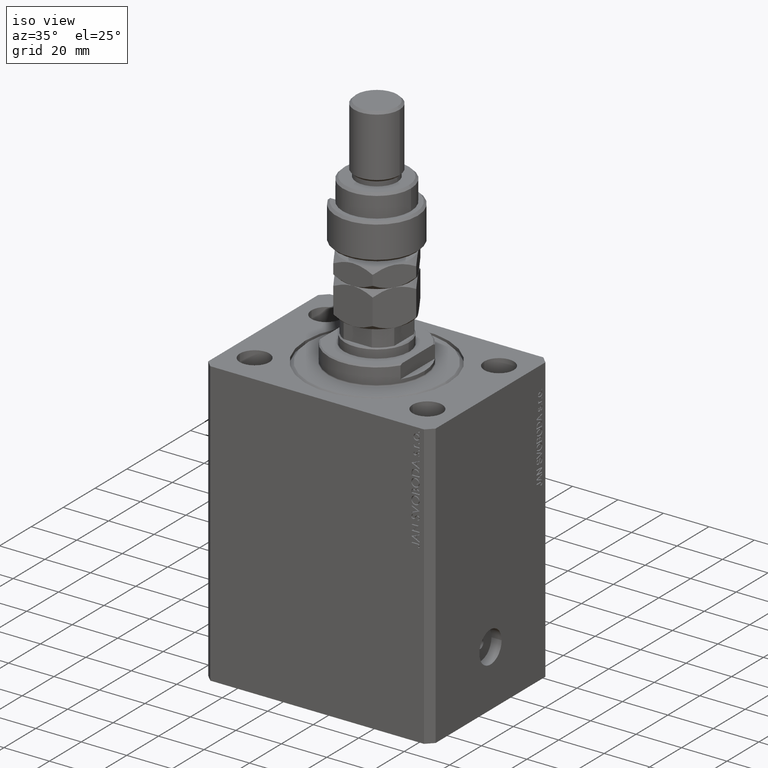
[diagram: clean part render]
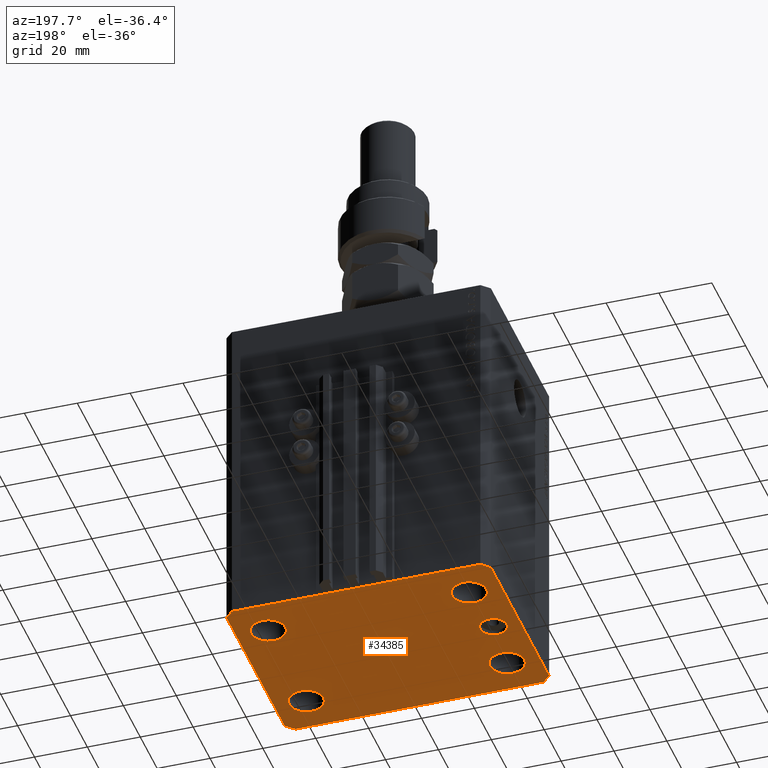
[diagram: tour spotlight — one face highlighted and labeled with its STEP entity id]
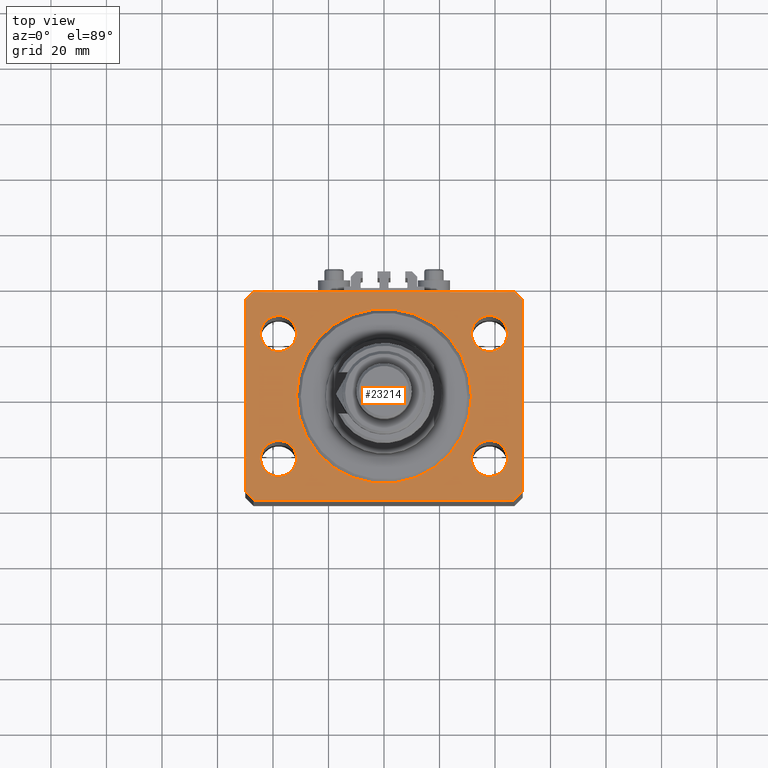
[diagram: tour spotlight — one face highlighted and labeled with its STEP entity id]
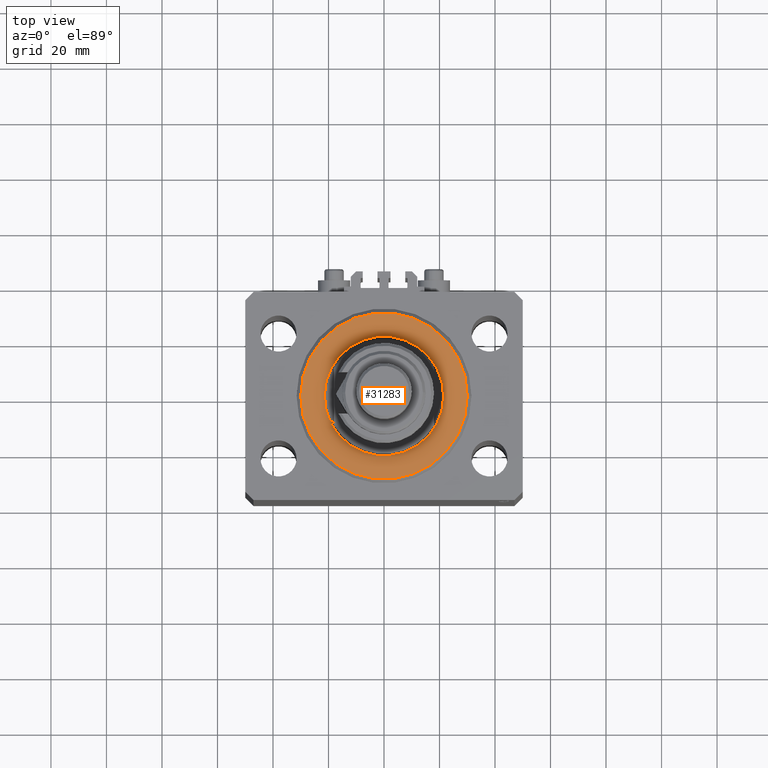
[diagram: tour spotlight — one face highlighted and labeled with its STEP entity id]
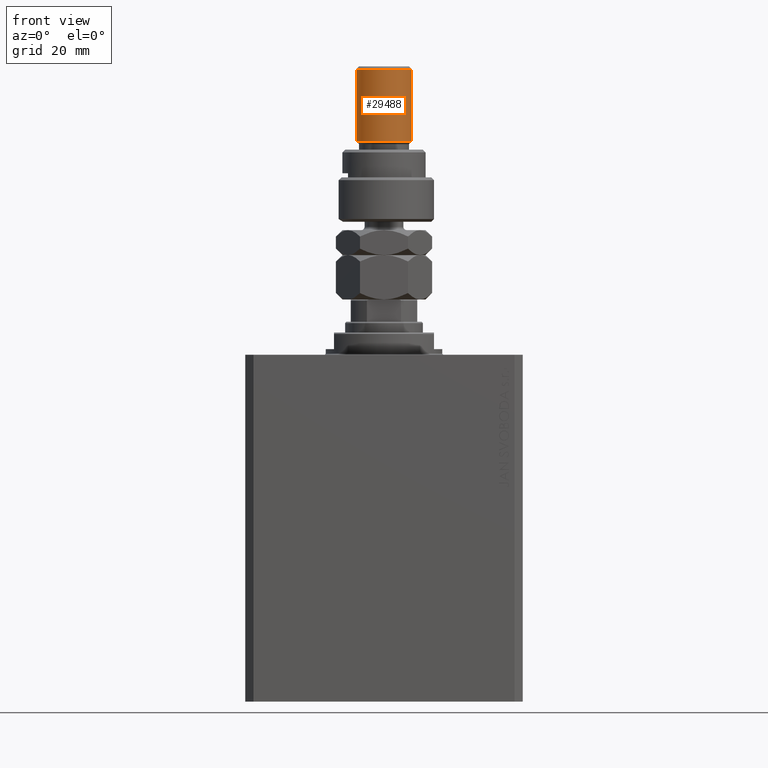
[diagram: tour spotlight — one face highlighted and labeled with its STEP entity id]
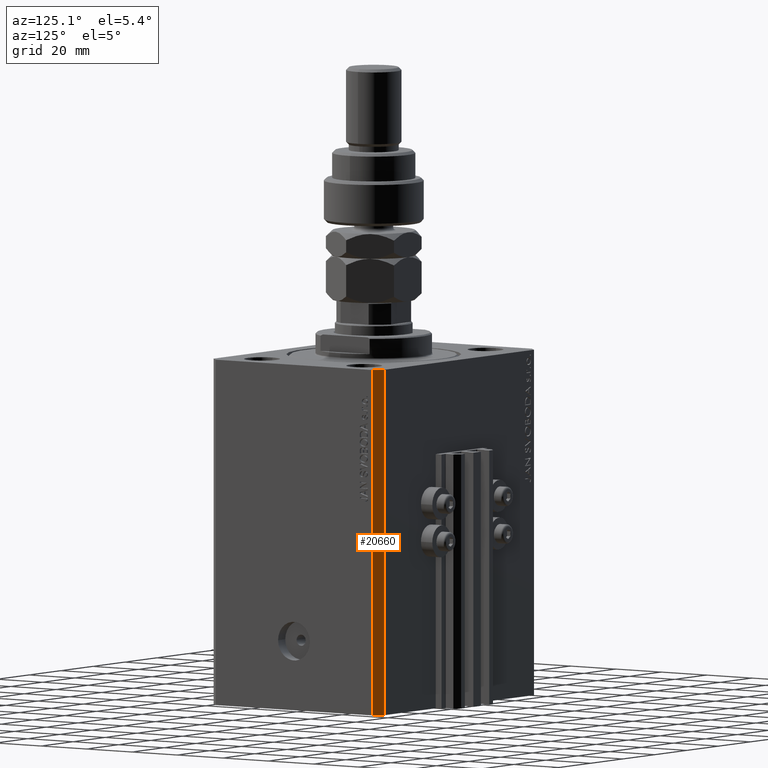
[diagram: tour spotlight — one face highlighted and labeled with its STEP entity id]
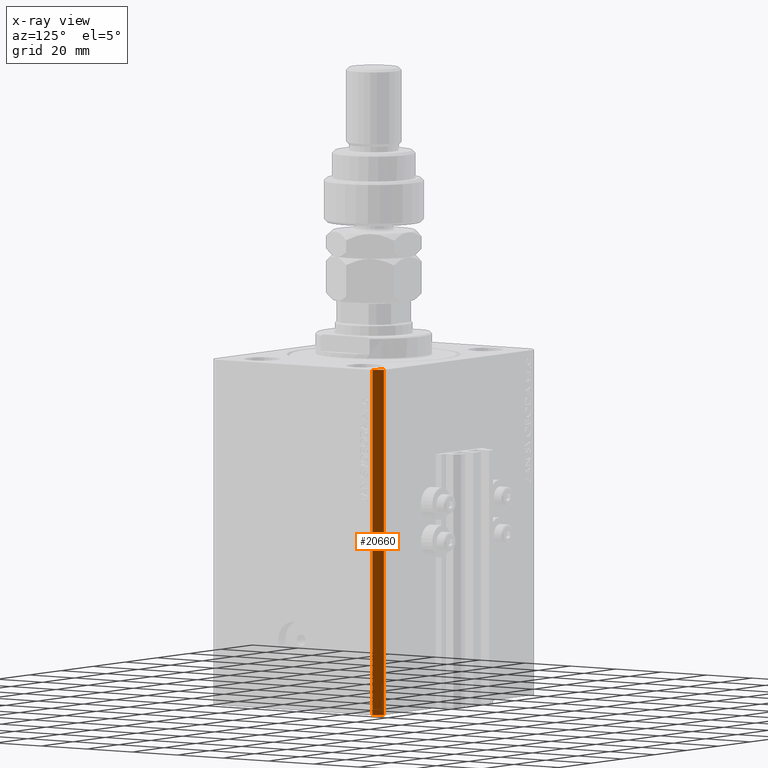
[diagram: x-ray of the same camera — body ghosted, this tour face saturated]
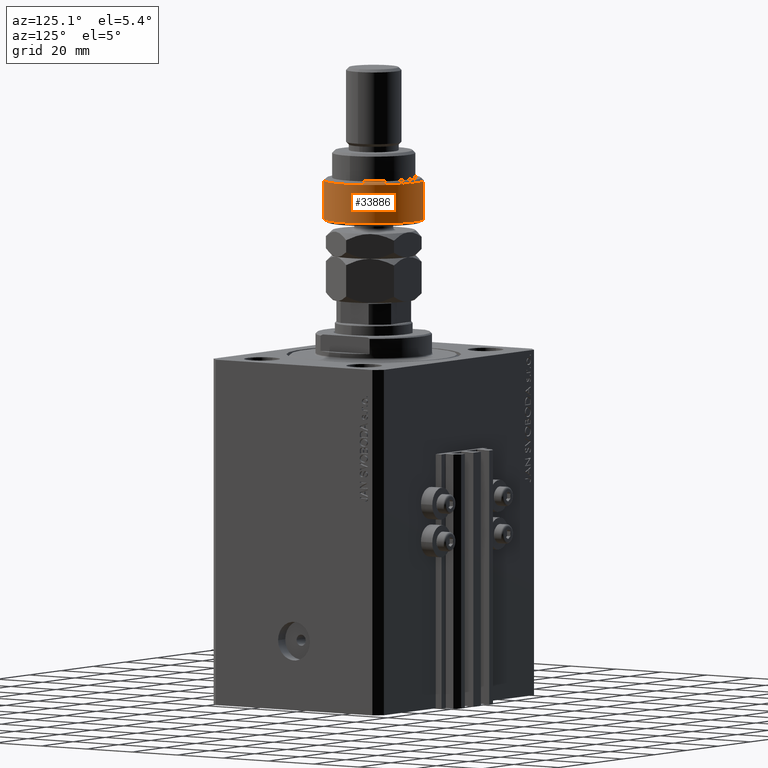
[diagram: tour spotlight — one face highlighted and labeled with its STEP entity id]
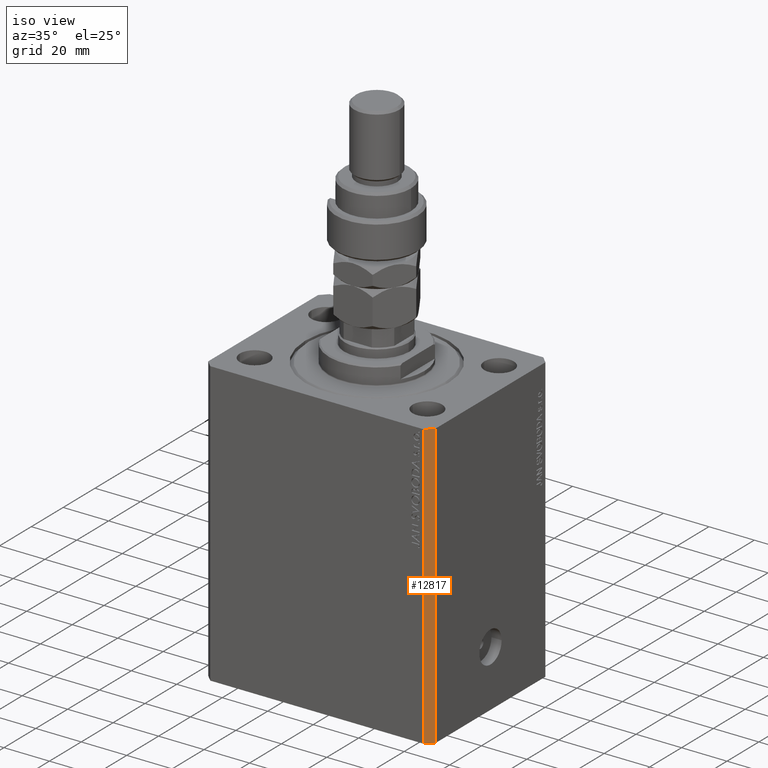
[diagram: tour spotlight — one face highlighted and labeled with its STEP entity id]
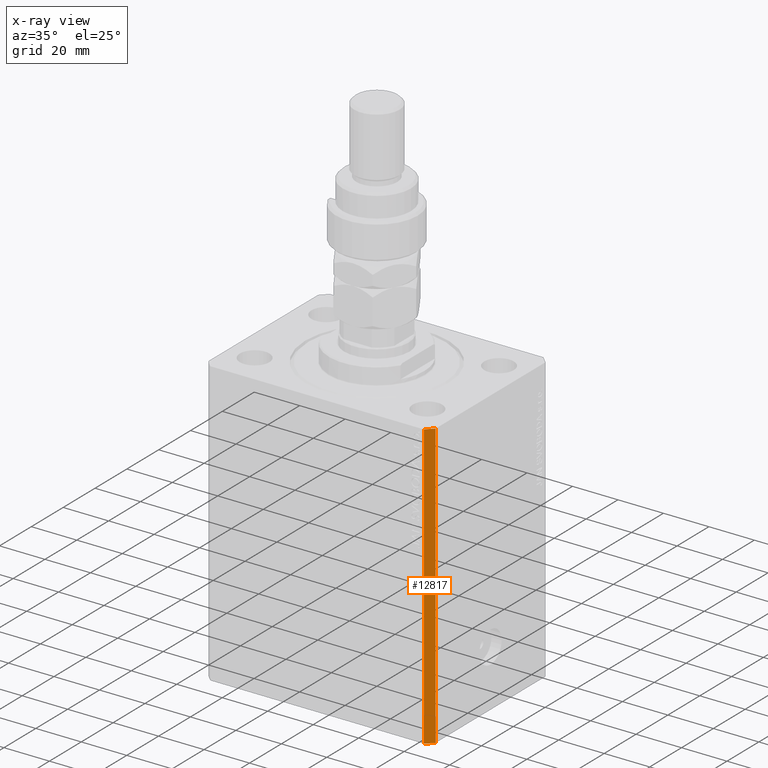
[diagram: x-ray of the same camera — body ghosted, this tour face saturated]
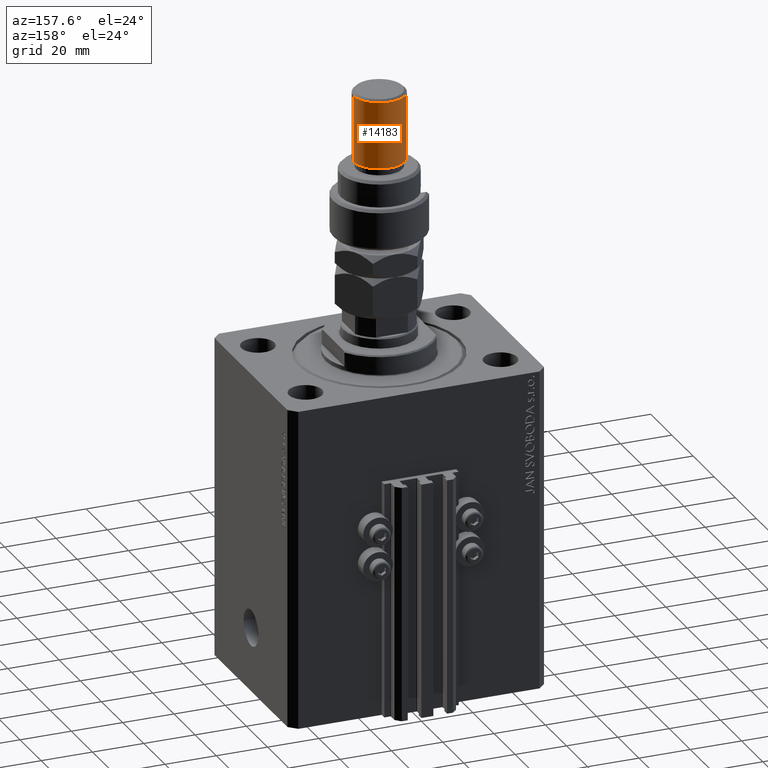
[diagram: tour spotlight — one face highlighted and labeled with its STEP entity id]
A machine part: a face-by-face anatomy tour. The part has 1123 B-rep faces; the first image is the clean iso view, then the 8 largest visible faces are spotlighted one at a time (largest first), each with its STEP entity span.

Face 1 — auxiliary view, entity #34385. In plain terms, the highlighted planar face has unit normal (0, 0, 1).
Definition (entity closure, byte-faithful):
#275 = EDGE_CURVE ( 'NONE', #16728, #23582, #38047, .T. ) ;
#369 = DIRECTION ( 'NONE',  ( -0.000000000000000000, -0.000000000000000000, -1.000000000000000000 ) ) ;
#560 = VECTOR ( 'NONE', #27018, 1000.000000000000000 ) ;
#853 = DIRECTION ( 'NONE',  ( 1.000000000000000000, 0.000000000000000000, 0.000000000000000000 ) ) ;
#871 = DIRECTION ( 'NONE',  ( -0.000000000000000000, -0.000000000000000000, -1.000000000000000000 ) ) ;
#1173 = CARTESIAN_POINT ( 'NONE',  ( -44.49999999999999289, -22.50000000000000000, -125.0000000000000000 ) ) ;
#1448 = DIRECTION ( 'NONE',  ( -1.000000000000000000, 0.000000000000000000, 0.000000000000000000 ) ) ;
#1624 = CARTESIAN_POINT ( 'NONE',  ( -40.00000000000000000, 0.000000000000000000, -125.0000000000000000 ) ) ;
#2508 = VECTOR ( 'NONE', #8788, 1000.000000000000000 ) ;
#2609 = ORIENTED_EDGE ( 'NONE', *, *, #44272, .F. ) ;
#2998 = PLANE ( 'NONE',  #47648 ) ;
#3314 = AXIS2_PLACEMENT_3D ( 'NONE', #20143, #871, #20900 ) ;
#3352 = ORIENTED_EDGE ( 'NONE', *, *, #30727, .F. ) ;
#3716 = EDGE_LOOP ( 'NONE', ( #27995, #11121, #5804, #3352, #25972, #27052, #22736, #32837 ) ) ;
#3901 = CARTESIAN_POINT ( 'NONE',  ( -47.00000000000001421, 37.50000000000000000, -125.0000000000000000 ) ) ;
#4159 = DIRECTION ( 'NONE',  ( -1.000000000000000000, 0.000000000000000000, 0.000000000000000000 ) ) ;
#4222 = VERTEX_POINT ( 'NONE', #4921 ) ;
#4244 = CARTESIAN_POINT ( 'NONE',  ( 0.000000000000000000, 0.000000000000000000, -125.0000000000000000 ) ) ;
#4283 = EDGE_CURVE ( 'NONE', #5075, #17198, #25208, .T. ) ;
#4415 = CARTESIAN_POINT ( 'NONE',  ( -37.99999999999999289, -22.50000000000000000, -125.0000000000000000 ) ) ;
#4617 = LINE ( 'NONE', #27979, #9427 ) ;
#4671 = VECTOR ( 'NONE', #38770, 1000.000000000000114 ) ;
#4753 = ORIENTED_EDGE ( 'NONE', *, *, #4283, .F. ) ;
#4879 = CARTESIAN_POINT ( 'NONE',  ( -47.00000000000001421, 37.50000000000000000, -125.0000000000000000 ) ) ;
#4921 = CARTESIAN_POINT ( 'NONE',  ( 47.00000000000000000, -37.50000000000000711, -125.0000000000000000 ) ) ;
#5075 = VERTEX_POINT ( 'NONE', #1173 ) ;
#5137 = DIRECTION ( 'NONE',  ( 0.7071067811865483499, 0.7071067811865466846, 0.000000000000000000 ) ) ;
#5263 = VERTEX_POINT ( 'NONE', #29341 ) ;
#5587 = VERTEX_POINT ( 'NONE', #30967 ) ;
#5649 = ORIENTED_EDGE ( 'NONE', *, *, #30904, .F. ) ;
#5804 = ORIENTED_EDGE ( 'NONE', *, *, #44853, .F. ) ;
#5846 = ORIENTED_EDGE ( 'NONE', *, *, #14546, .F. ) ;
#6366 = EDGE_CURVE ( 'NONE', #17198, #5075, #7290, .T. ) ;
#6505 = AXIS2_PLACEMENT_3D ( 'NONE', #4415, #369, #36165 ) ;
#6568 = FACE_BOUND ( 'NONE', #46953, .T. ) ;
#7037 = DIRECTION ( 'NONE',  ( 1.000000000000000000, -1.476360405086644309E-16, 0.000000000000000000 ) ) ;
#7290 = CIRCLE ( 'NONE', #6505, 6.499999999999999112 ) ;
#7389 = VERTEX_POINT ( 'NONE', #22411 ) ;
#7513 = ORIENTED_EDGE ( 'NONE', *, *, #19643, .F. ) ;
#7862 = VERTEX_POINT ( 'NONE', #19824 ) ;
#8144 = CIRCLE ( 'NONE', #28418, 4.999999999999997335 ) ;
#8211 = AXIS2_PLACEMENT_3D ( 'NONE', #34769, #15936, #15448 ) ;
#8658 = AXIS2_PLACEMENT_3D ( 'NONE', #43138, #39588, #17389 ) ;
#8788 = DIRECTION ( 'NONE',  ( 7.441712302741091634E-15, 1.000000000000000000, 0.000000000000000000 ) ) ;
#9420 = CARTESIAN_POINT ( 'NONE',  ( -50.00000000000000000, -34.50000000000000000, -125.0000000000000000 ) ) ;
#9427 = VECTOR ( 'NONE', #5137, 1000.000000000000000 ) ;
#9516 = VERTEX_POINT ( 'NONE', #20213 ) ;
#9555 = CARTESIAN_POINT ( 'NONE',  ( 50.00000000000000000, -34.50000000000000711, -125.0000000000000000 ) ) ;
#9926 = CIRCLE ( 'NONE', #48829, 6.499999999999999112 ) ;
#10455 = CARTESIAN_POINT ( 'NONE',  ( -5.000000000000000000, 0.000000000000000000, -125.0000000000000000 ) ) ;
#11121 = ORIENTED_EDGE ( 'NONE', *, *, #39354, .F. ) ;
#11124 = CARTESIAN_POINT ( 'NONE',  ( 47.00000000000056843, 37.49999999999999289, -125.0000000000000000 ) ) ;
#11206 = ORIENTED_EDGE ( 'NONE', *, *, #26714, .F. ) ;
#11364 = VERTEX_POINT ( 'NONE', #9420 ) ;
#12754 = VERTEX_POINT ( 'NONE', #9555 ) ;
#12905 = AXIS2_PLACEMENT_3D ( 'NONE', #43495, #20388, #853 ) ;
#13320 = CARTESIAN_POINT ( 'NONE',  ( -38.00000000000000000, 22.49999999999999645, -125.0000000000000000 ) ) ;
#13551 = CIRCLE ( 'NONE', #41123, 6.499999999999999112 ) ;
#13814 = DIRECTION ( 'NONE',  ( -0.000000000000000000, -0.000000000000000000, -1.000000000000000000 ) ) ;
#13817 = EDGE_CURVE ( 'NONE', #15747, #39773, #15316, .T. ) ;
#14170 = FACE_BOUND ( 'NONE', #25393, .T. ) ;
#14546 = EDGE_CURVE ( 'NONE', #5587, #20688, #30574, .T. ) ;
#14986 = EDGE_LOOP ( 'NONE', ( #5846, #31180 ) ) ;
#15316 = LINE ( 'NONE', #3901, #560 ) ;
#15448 = DIRECTION ( 'NONE',  ( -1.000000000000000000, 0.000000000000000000, 0.000000000000000000 ) ) ;
#15747 = VERTEX_POINT ( 'NONE', #4879 ) ;
#15936 = DIRECTION ( 'NONE',  ( 0.000000000000000000, 0.000000000000000000, -1.000000000000000000 ) ) ;
#16622 = CARTESIAN_POINT ( 'NONE',  ( 5.000000000000000000, 6.123233995736765296E-16, -125.0000000000000000 ) ) ;
#16728 = VERTEX_POINT ( 'NONE', #10455 ) ;
#17098 = DIRECTION ( 'NONE',  ( 1.000000000000000000, 0.000000000000000000, 0.000000000000000000 ) ) ;
#17198 = VERTEX_POINT ( 'NONE', #39327 ) ;
#17389 = DIRECTION ( 'NONE',  ( 1.000000000000000000, 0.000000000000000000, 0.000000000000000000 ) ) ;
#17495 = EDGE_CURVE ( 'NONE', #11364, #9516, #22019, .T. ) ;
#18339 = CARTESIAN_POINT ( 'NONE',  ( -45.00000000000000000, 0.000000000000000000, -125.0000000000000000 ) ) ;
#18885 = DIRECTION ( 'NONE',  ( 0.000000000000000000, 0.000000000000000000, -1.000000000000000000 ) ) ;
#19576 = ORIENTED_EDGE ( 'NONE', *, *, #48607, .F. ) ;
#19643 = EDGE_CURVE ( 'NONE', #7389, #45046, #9926, .T. ) ;
#19703 = DIRECTION ( 'NONE',  ( -0.000000000000000000, -0.000000000000000000, -1.000000000000000000 ) ) ;
#19824 = CARTESIAN_POINT ( 'NONE',  ( 50.00000000000051870, 34.49999999999995026, -125.0000000000000000 ) ) ;
#20140 = AXIS2_PLACEMENT_3D ( 'NONE', #13320, #13814, #37205 ) ;
#20143 = CARTESIAN_POINT ( 'NONE',  ( -37.99999999999999289, -22.50000000000000000, -125.0000000000000000 ) ) ;
#20213 = CARTESIAN_POINT ( 'NONE',  ( -47.00000000000000000, -37.49999999999999289, -125.0000000000000000 ) ) ;
#20388 = DIRECTION ( 'NONE',  ( -0.000000000000000000, -0.000000000000000000, -1.000000000000000000 ) ) ;
#20413 = CARTESIAN_POINT ( 'NONE',  ( -50.00000000000001421, 34.50000000000000000, -125.0000000000000000 ) ) ;
#20495 = VERTEX_POINT ( 'NONE', #18339 ) ;
#20655 = LINE ( 'NONE', #20413, #37367 ) ;
#20688 = VERTEX_POINT ( 'NONE', #34865 ) ;
#20900 = DIRECTION ( 'NONE',  ( 1.000000000000000000, 0.000000000000000000, 0.000000000000000000 ) ) ;
#20906 = CARTESIAN_POINT ( 'NONE',  ( 38.00000000000000000, 22.49999999999998934, -125.0000000000000000 ) ) ;
#21147 = ORIENTED_EDGE ( 'NONE', *, *, #6366, .F. ) ;
#22019 = LINE ( 'NONE', #46116, #4671 ) ;
#22411 = CARTESIAN_POINT ( 'NONE',  ( 31.50000000000000000, 22.49999999999998934, -125.0000000000000000 ) ) ;
#22658 = CIRCLE ( 'NONE', #12905, 6.499999999999999112 ) ;
#22736 = ORIENTED_EDGE ( 'NONE', *, *, #44315, .F. ) ;
#23076 = VERTEX_POINT ( 'NONE', #11124 ) ;
#23582 = VERTEX_POINT ( 'NONE', #16622 ) ;
#24194 = CARTESIAN_POINT ( 'NONE',  ( -50.00000000000001421, 34.50000000000000000, -125.0000000000000000 ) ) ;
#24223 = AXIS2_PLACEMENT_3D ( 'NONE', #46309, #18885, #4159 ) ;
#24368 = CARTESIAN_POINT ( 'NONE',  ( 37.99999999999999289, -22.50000000000000000, -125.0000000000000000 ) ) ;
#25189 = VECTOR ( 'NONE', #47491, 1000.000000000000000 ) ;
#25208 = CIRCLE ( 'NONE', #3314, 6.499999999999999112 ) ;
#25393 = EDGE_LOOP ( 'NONE', ( #21147, #4753 ) ) ;
#25972 = ORIENTED_EDGE ( 'NONE', *, *, #43173, .F. ) ;
#26333 = LINE ( 'NONE', #41835, #39780 ) ;
#26424 = ORIENTED_EDGE ( 'NONE', *, *, #275, .F. ) ;
#26714 = EDGE_CURVE ( 'NONE', #23582, #16728, #32548, .T. ) ;
#27018 = DIRECTION ( 'NONE',  ( -0.7071067811865483499, -0.7071067811865466846, 0.000000000000000000 ) ) ;
#27052 = ORIENTED_EDGE ( 'NONE', *, *, #17495, .F. ) ;
#27258 = AXIS2_PLACEMENT_3D ( 'NONE', #24368, #39620, #44180 ) ;
#27304 = CARTESIAN_POINT ( 'NONE',  ( 50.00000000000051870, 34.49999999999995026, -125.0000000000000000 ) ) ;
#27979 = CARTESIAN_POINT ( 'NONE',  ( 47.00000000000000000, -37.50000000000000711, -125.0000000000000000 ) ) ;
#27995 = ORIENTED_EDGE ( 'NONE', *, *, #44652, .F. ) ;
#28093 = DIRECTION ( 'NONE',  ( 0.000000000000000000, 0.000000000000000000, 1.000000000000000000 ) ) ;
#28219 = CIRCLE ( 'NONE', #20140, 6.499999999999999112 ) ;
#28418 = AXIS2_PLACEMENT_3D ( 'NONE', #1624, #47558, #40481 ) ;
#29341 = CARTESIAN_POINT ( 'NONE',  ( 44.49999999999999289, -22.50000000000000000, -125.0000000000000000 ) ) ;
#29414 = CIRCLE ( 'NONE', #40758, 4.999999999999997335 ) ;
#29921 = FACE_OUTER_BOUND ( 'NONE', #3716, .T. ) ;
#30574 = CIRCLE ( 'NONE', #8658, 6.499999999999999112 ) ;
#30722 = LINE ( 'NONE', #42422, #2508 ) ;
#30727 = EDGE_CURVE ( 'NONE', #4222, #12754, #4617, .T. ) ;
#30904 = EDGE_CURVE ( 'NONE', #5263, #31309, #36200, .T. ) ;
#30967 = CARTESIAN_POINT ( 'NONE',  ( -31.50000000000000000, 22.49999999999999645, -125.0000000000000000 ) ) ;
#31146 = DIRECTION ( 'NONE',  ( 1.000000000000000000, 0.000000000000000000, 0.000000000000000000 ) ) ;
#31180 = ORIENTED_EDGE ( 'NONE', *, *, #38884, .F. ) ;
#31309 = VERTEX_POINT ( 'NONE', #42318 ) ;
#32030 = CARTESIAN_POINT ( 'NONE',  ( 47.00000000000056843, 37.49999999999999289, -125.0000000000000000 ) ) ;
#32284 = LINE ( 'NONE', #32030, #25189 ) ;
#32548 = CIRCLE ( 'NONE', #8211, 5.000000000000000000 ) ;
#32637 = EDGE_CURVE ( 'NONE', #31309, #5263, #13551, .T. ) ;
#32837 = ORIENTED_EDGE ( 'NONE', *, *, #13817, .F. ) ;
#33012 = EDGE_LOOP ( 'NONE', ( #19576, #2609 ) ) ;
#33847 = CARTESIAN_POINT ( 'NONE',  ( -35.00000000000000000, 6.123233995736762338E-16, -125.0000000000000000 ) ) ;
#33888 = VERTEX_POINT ( 'NONE', #33847 ) ;
#33927 = VECTOR ( 'NONE', #49903, 1000.000000000000114 ) ;
#34385 = ADVANCED_FACE ( 'NONE', ( #38545, #48948, #14170, #41355, #6568, #37792, #29921 ), #2998, .F. ) ;
#34769 = CARTESIAN_POINT ( 'NONE',  ( 0.000000000000000000, 0.000000000000000000, -125.0000000000000000 ) ) ;
#34865 = CARTESIAN_POINT ( 'NONE',  ( -44.50000000000000000, 22.49999999999999645, -125.0000000000000000 ) ) ;
#36165 = DIRECTION ( 'NONE',  ( 1.000000000000000000, 0.000000000000000000, 0.000000000000000000 ) ) ;
#36200 = CIRCLE ( 'NONE', #27258, 6.499999999999999112 ) ;
#36252 = DIRECTION ( 'NONE',  ( 0.000000000000000000, 0.000000000000000000, -1.000000000000000000 ) ) ;
#37205 = DIRECTION ( 'NONE',  ( 1.000000000000000000, 0.000000000000000000, 0.000000000000000000 ) ) ;
#37367 = VECTOR ( 'NONE', #47817, 1000.000000000000000 ) ;
#37792 = FACE_BOUND ( 'NONE', #14986, .T. ) ;
#38047 = CIRCLE ( 'NONE', #24223, 5.000000000000000000 ) ;
#38531 = CARTESIAN_POINT ( 'NONE',  ( 37.99999999999999289, -22.50000000000000000, -125.0000000000000000 ) ) ;
#38545 = FACE_BOUND ( 'NONE', #40095, .T. ) ;
#38770 = DIRECTION ( 'NONE',  ( 0.7071067811865491270, -0.7071067811865459074, 0.000000000000000000 ) ) ;
#38884 = EDGE_CURVE ( 'NONE', #20688, #5587, #28219, .T. ) ;
#39327 = CARTESIAN_POINT ( 'NONE',  ( -31.49999999999999289, -22.50000000000000000, -125.0000000000000000 ) ) ;
#39354 = EDGE_CURVE ( 'NONE', #7862, #23076, #46838, .T. ) ;
#39540 = DIRECTION ( 'NONE',  ( 1.000000000000000000, 0.000000000000000000, -0.000000000000000000 ) ) ;
#39588 = DIRECTION ( 'NONE',  ( -0.000000000000000000, -0.000000000000000000, -1.000000000000000000 ) ) ;
#39620 = DIRECTION ( 'NONE',  ( -0.000000000000000000, -0.000000000000000000, -1.000000000000000000 ) ) ;
#39773 = VERTEX_POINT ( 'NONE', #24194 ) ;
#39780 = VECTOR ( 'NONE', #7037, 1000.000000000000000 ) ;
#39989 = DIRECTION ( 'NONE',  ( -0.000000000000000000, -0.000000000000000000, -1.000000000000000000 ) ) ;
#40095 = EDGE_LOOP ( 'NONE', ( #26424, #11206 ) ) ;
#40481 = DIRECTION ( 'NONE',  ( -1.000000000000000000, 0.000000000000000000, 0.000000000000000000 ) ) ;
#40758 = AXIS2_PLACEMENT_3D ( 'NONE', #47385, #36252, #1448 ) ;
#41123 = AXIS2_PLACEMENT_3D ( 'NONE', #38531, #19703, #31146 ) ;
#41355 = FACE_BOUND ( 'NONE', #49737, .T. ) ;
#41478 = EDGE_CURVE ( 'NONE', #45046, #7389, #22658, .T. ) ;
#41835 = CARTESIAN_POINT ( 'NONE',  ( -47.00000000000000000, -37.49999999999999289, -125.0000000000000000 ) ) ;
#42318 = CARTESIAN_POINT ( 'NONE',  ( 31.49999999999999289, -22.50000000000000000, -125.0000000000000000 ) ) ;
#42422 = CARTESIAN_POINT ( 'NONE',  ( 50.00000000000000000, -34.50000000000000711, -125.0000000000000000 ) ) ;
#43138 = CARTESIAN_POINT ( 'NONE',  ( -38.00000000000000000, 22.49999999999999645, -125.0000000000000000 ) ) ;
#43173 = EDGE_CURVE ( 'NONE', #9516, #4222, #26333, .T. ) ;
#43479 = ORIENTED_EDGE ( 'NONE', *, *, #41478, .F. ) ;
#43495 = CARTESIAN_POINT ( 'NONE',  ( 38.00000000000000000, 22.49999999999998934, -125.0000000000000000 ) ) ;
#44180 = DIRECTION ( 'NONE',  ( 1.000000000000000000, 0.000000000000000000, 0.000000000000000000 ) ) ;
#44272 = EDGE_CURVE ( 'NONE', #33888, #20495, #8144, .T. ) ;
#44315 = EDGE_CURVE ( 'NONE', #39773, #11364, #20655, .T. ) ;
#44652 = EDGE_CURVE ( 'NONE', #23076, #15747, #32284, .T. ) ;
#44853 = EDGE_CURVE ( 'NONE', #12754, #7862, #30722, .T. ) ;
#44975 = CARTESIAN_POINT ( 'NONE',  ( 44.50000000000000000, 22.49999999999998934, -125.0000000000000000 ) ) ;
#45046 = VERTEX_POINT ( 'NONE', #44975 ) ;
#46116 = CARTESIAN_POINT ( 'NONE',  ( -50.00000000000000000, -34.50000000000000000, -125.0000000000000000 ) ) ;
#46309 = CARTESIAN_POINT ( 'NONE',  ( 0.000000000000000000, 0.000000000000000000, -125.0000000000000000 ) ) ;
#46740 = ORIENTED_EDGE ( 'NONE', *, *, #32637, .F. ) ;
#46838 = LINE ( 'NONE', #27304, #33927 ) ;
#46953 = EDGE_LOOP ( 'NONE', ( #43479, #7513 ) ) ;
#47385 = CARTESIAN_POINT ( 'NONE',  ( -40.00000000000000000, 0.000000000000000000, -125.0000000000000000 ) ) ;
#47491 = DIRECTION ( 'NONE',  ( -1.000000000000000000, 7.381802025433175941E-17, 0.000000000000000000 ) ) ;
#47558 = DIRECTION ( 'NONE',  ( 0.000000000000000000, 0.000000000000000000, -1.000000000000000000 ) ) ;
#47648 = AXIS2_PLACEMENT_3D ( 'NONE', #4244, #28093, #39540 ) ;
#47817 = DIRECTION ( 'NONE',  ( 2.011273595335428326E-16, -1.000000000000000000, 0.000000000000000000 ) ) ;
#48607 = EDGE_CURVE ( 'NONE', #20495, #33888, #29414, .T. ) ;
#48829 = AXIS2_PLACEMENT_3D ( 'NONE', #20906, #39989, #17098 ) ;
#48948 = FACE_BOUND ( 'NONE', #33012, .T. ) ;
#49737 = EDGE_LOOP ( 'NONE', ( #5649, #46740 ) ) ;
#49903 = DIRECTION ( 'NONE',  ( -0.7071067811865361374, 0.7071067811865588970, 0.000000000000000000 ) ) ;

Face 2 — top view, entity #23214. In plain terms, the highlighted planar face has unit normal (0, 0, 1).
Definition (entity closure, byte-faithful):
#124 = CIRCLE ( 'NONE', #2581, 6.499999999999999112 ) ;
#432 = LINE ( 'NONE', #4991, #29399 ) ;
#760 = LINE ( 'NONE', #47707, #19653 ) ;
#888 = DIRECTION ( 'NONE',  ( 0.000000000000000000, 0.000000000000000000, 1.000000000000000000 ) ) ;
#972 = FACE_OUTER_BOUND ( 'NONE', #36511, .T. ) ;
#1009 = AXIS2_PLACEMENT_3D ( 'NONE', #18904, #10793, #49877 ) ;
#1071 = AXIS2_PLACEMENT_3D ( 'NONE', #6711, #18603, #10251 ) ;
#1075 = DIRECTION ( 'NONE',  ( 0.000000000000000000, 0.000000000000000000, 1.000000000000000000 ) ) ;
#2293 = VECTOR ( 'NONE', #10496, 1000.000000000000000 ) ;
#2581 = AXIS2_PLACEMENT_3D ( 'NONE', #48518, #22123, #6394 ) ;
#2757 = AXIS2_PLACEMENT_3D ( 'NONE', #20164, #888, #12796 ) ;
#3261 = VERTEX_POINT ( 'NONE', #41528 ) ;
#3753 = ORIENTED_EDGE ( 'NONE', *, *, #21913, .T. ) ;
#3767 = PLANE ( 'NONE',  #26734 ) ;
#3871 = VECTOR ( 'NONE', #11451, 1000.000000000000000 ) ;
#4763 = FACE_BOUND ( 'NONE', #13573, .T. ) ;
#4807 = VECTOR ( 'NONE', #29535, 1000.000000000000000 ) ;
#4991 = CARTESIAN_POINT ( 'NONE',  ( 50.00000000000051870, 34.49999999999995026, 0.000000000000000000 ) ) ;
#5098 = CARTESIAN_POINT ( 'NONE',  ( 44.49999999999999289, -22.50000000000000000, 0.000000000000000000 ) ) ;
#5241 = CARTESIAN_POINT ( 'NONE',  ( -31.50000000000000000, 3.857637417314162689E-15, 0.000000000000000000 ) ) ;
#5519 = ORIENTED_EDGE ( 'NONE', *, *, #32041, .T. ) ;
#6121 = EDGE_CURVE ( 'NONE', #48891, #21138, #25162, .T. ) ;
#6389 = CIRCLE ( 'NONE', #9611, 6.499999999999999112 ) ;
#6394 = DIRECTION ( 'NONE',  ( 1.000000000000000000, 0.000000000000000000, 0.000000000000000000 ) ) ;
#6452 = CARTESIAN_POINT ( 'NONE',  ( -50.00000000000001421, 34.50000000000000000, 0.000000000000000000 ) ) ;
#6538 = CARTESIAN_POINT ( 'NONE',  ( -38.00000000000000000, 22.49999999999999645, 0.000000000000000000 ) ) ;
#6711 = CARTESIAN_POINT ( 'NONE',  ( -37.99999999999999289, -22.50000000000000000, 0.000000000000000000 ) ) ;
#6862 = CARTESIAN_POINT ( 'NONE',  ( 47.00000000000056843, 37.49999999999999289, 0.000000000000000000 ) ) ;
#6904 = CARTESIAN_POINT ( 'NONE',  ( 47.00000000000000000, -37.50000000000000711, 0.000000000000000000 ) ) ;
#7041 = VECTOR ( 'NONE', #21758, 1000.000000000000000 ) ;
#8202 = DIRECTION ( 'NONE',  ( 0.000000000000000000, 0.000000000000000000, 1.000000000000000000 ) ) ;
#8566 = FACE_BOUND ( 'NONE', #10813, .T. ) ;
#8632 = VERTEX_POINT ( 'NONE', #28340 ) ;
#9611 = AXIS2_PLACEMENT_3D ( 'NONE', #11739, #49839, #15054 ) ;
#10251 = DIRECTION ( 'NONE',  ( 1.000000000000000000, 0.000000000000000000, 0.000000000000000000 ) ) ;
#10496 = DIRECTION ( 'NONE',  ( 2.011273595335428326E-16, -1.000000000000000000, 0.000000000000000000 ) ) ;
#10679 = VERTEX_POINT ( 'NONE', #6862 ) ;
#10755 = AXIS2_PLACEMENT_3D ( 'NONE', #47577, #31866, #12549 ) ;
#10793 = DIRECTION ( 'NONE',  ( 0.000000000000000000, 0.000000000000000000, 1.000000000000000000 ) ) ;
#10813 = EDGE_LOOP ( 'NONE', ( #24826, #16425 ) ) ;
#11451 = DIRECTION ( 'NONE',  ( 0.7071067811865483499, 0.7071067811865466846, 0.000000000000000000 ) ) ;
#11633 = DIRECTION ( 'NONE',  ( 1.000000000000000000, 0.000000000000000000, -0.000000000000000000 ) ) ;
#11635 = DIRECTION ( 'NONE',  ( -1.000000000000000000, 7.381802025433175941E-17, 0.000000000000000000 ) ) ;
#11739 = CARTESIAN_POINT ( 'NONE',  ( 37.99999999999999289, -22.50000000000000000, 0.000000000000000000 ) ) ;
#12549 = DIRECTION ( 'NONE',  ( 1.000000000000000000, 0.000000000000000000, 0.000000000000000000 ) ) ;
#12645 = VERTEX_POINT ( 'NONE', #28099 ) ;
#12796 = DIRECTION ( 'NONE',  ( 1.000000000000000000, 0.000000000000000000, 0.000000000000000000 ) ) ;
#12859 = AXIS2_PLACEMENT_3D ( 'NONE', #6538, #8202, #35151 ) ;
#12872 = ORIENTED_EDGE ( 'NONE', *, *, #21437, .F. ) ;
#12992 = DIRECTION ( 'NONE',  ( 1.000000000000000000, 0.000000000000000000, 0.000000000000000000 ) ) ;
#13573 = EDGE_LOOP ( 'NONE', ( #46852, #44537 ) ) ;
#13682 = DIRECTION ( 'NONE',  ( -0.7071067811865483499, -0.7071067811865466846, 0.000000000000000000 ) ) ;
#14006 = EDGE_LOOP ( 'NONE', ( #49680, #37587 ) ) ;
#14033 = CARTESIAN_POINT ( 'NONE',  ( -47.00000000000000000, -37.49999999999999289, 0.000000000000000000 ) ) ;
#14777 = VERTEX_POINT ( 'NONE', #15329 ) ;
#15054 = DIRECTION ( 'NONE',  ( 1.000000000000000000, 0.000000000000000000, 0.000000000000000000 ) ) ;
#15292 = CARTESIAN_POINT ( 'NONE',  ( 44.50000000000000000, 22.49999999999998934, 0.000000000000000000 ) ) ;
#15329 = CARTESIAN_POINT ( 'NONE',  ( -31.50000000000000000, 22.49999999999999645, 0.000000000000000000 ) ) ;
#15887 = CARTESIAN_POINT ( 'NONE',  ( 38.00000000000000000, 22.49999999999998934, 0.000000000000000000 ) ) ;
#16178 = FACE_BOUND ( 'NONE', #14006, .T. ) ;
#16425 = ORIENTED_EDGE ( 'NONE', *, *, #36034, .F. ) ;
#16431 = CIRCLE ( 'NONE', #10755, 6.499999999999999112 ) ;
#17231 = CIRCLE ( 'NONE', #1009, 31.50000000000000000 ) ;
#17941 = LINE ( 'NONE', #33704, #7041 ) ;
#18603 = DIRECTION ( 'NONE',  ( 0.000000000000000000, 0.000000000000000000, 1.000000000000000000 ) ) ;
#18655 = AXIS2_PLACEMENT_3D ( 'NONE', #15887, #31389, #46862 ) ;
#18904 = CARTESIAN_POINT ( 'NONE',  ( 0.000000000000000000, 0.000000000000000000, 0.000000000000000000 ) ) ;
#18978 = VERTEX_POINT ( 'NONE', #34598 ) ;
#19240 = CARTESIAN_POINT ( 'NONE',  ( 0.000000000000000000, 0.000000000000000000, 0.000000000000000000 ) ) ;
#19246 = EDGE_CURVE ( 'NONE', #31956, #10679, #432, .T. ) ;
#19363 = EDGE_CURVE ( 'NONE', #45182, #44009, #17231, .T. ) ;
#19653 = VECTOR ( 'NONE', #13682, 1000.000000000000000 ) ;
#20164 = CARTESIAN_POINT ( 'NONE',  ( -38.00000000000000000, 22.49999999999999645, 0.000000000000000000 ) ) ;
#20475 = DIRECTION ( 'NONE',  ( -0.7071067811865361374, 0.7071067811865588970, 0.000000000000000000 ) ) ;
#20567 = CIRCLE ( 'NONE', #2757, 6.499999999999999112 ) ;
#20617 = CARTESIAN_POINT ( 'NONE',  ( -44.50000000000000000, 22.49999999999999645, 0.000000000000000000 ) ) ;
#21138 = VERTEX_POINT ( 'NONE', #45409 ) ;
#21437 = EDGE_CURVE ( 'NONE', #36221, #14777, #20567, .T. ) ;
#21490 = ORIENTED_EDGE ( 'NONE', *, *, #34965, .T. ) ;
#21758 = DIRECTION ( 'NONE',  ( 7.441712302741091634E-15, 1.000000000000000000, 0.000000000000000000 ) ) ;
#21804 = DIRECTION ( 'NONE',  ( 1.000000000000000000, 0.000000000000000000, 0.000000000000000000 ) ) ;
#21913 = EDGE_CURVE ( 'NONE', #3261, #45094, #760, .T. ) ;
#22123 = DIRECTION ( 'NONE',  ( 0.000000000000000000, 0.000000000000000000, 1.000000000000000000 ) ) ;
#22568 = LINE ( 'NONE', #23072, #37861 ) ;
#23072 = CARTESIAN_POINT ( 'NONE',  ( 47.00000000000056843, 37.49999999999999289, 0.000000000000000000 ) ) ;
#23168 = VECTOR ( 'NONE', #33811, 1000.000000000000114 ) ;
#23214 = ADVANCED_FACE ( 'NONE', ( #16178, #47159, #8566, #4763, #35765, #972 ), #3767, .T. ) ;
#23418 = ORIENTED_EDGE ( 'NONE', *, *, #31798, .T. ) ;
#23542 = CARTESIAN_POINT ( 'NONE',  ( -50.00000000000001421, 34.50000000000000000, 0.000000000000000000 ) ) ;
#24430 = EDGE_CURVE ( 'NONE', #44009, #45182, #49443, .T. ) ;
#24574 = VERTEX_POINT ( 'NONE', #25178 ) ;
#24826 = ORIENTED_EDGE ( 'NONE', *, *, #49944, .F. ) ;
#25162 = CIRCLE ( 'NONE', #18655, 6.499999999999999112 ) ;
#25178 = CARTESIAN_POINT ( 'NONE',  ( -50.00000000000000000, -34.50000000000000000, 0.000000000000000000 ) ) ;
#25629 = ORIENTED_EDGE ( 'NONE', *, *, #37063, .F. ) ;
#26734 = AXIS2_PLACEMENT_3D ( 'NONE', #19240, #46428, #11633 ) ;
#27111 = EDGE_LOOP ( 'NONE', ( #44182, #40375 ) ) ;
#27567 = AXIS2_PLACEMENT_3D ( 'NONE', #36121, #1075, #12992 ) ;
#28099 = CARTESIAN_POINT ( 'NONE',  ( 47.00000000000000000, -37.50000000000000711, 0.000000000000000000 ) ) ;
#28340 = CARTESIAN_POINT ( 'NONE',  ( -44.49999999999999289, -22.50000000000000000, 0.000000000000000000 ) ) ;
#28831 = VERTEX_POINT ( 'NONE', #40994 ) ;
#28844 = EDGE_CURVE ( 'NONE', #18978, #8632, #37562, .T. ) ;
#29003 = EDGE_CURVE ( 'NONE', #24574, #28831, #37396, .T. ) ;
#29285 = LINE ( 'NONE', #14033, #4807 ) ;
#29337 = EDGE_LOOP ( 'NONE', ( #25629, #12872 ) ) ;
#29399 = VECTOR ( 'NONE', #20475, 1000.000000000000114 ) ;
#29535 = DIRECTION ( 'NONE',  ( 1.000000000000000000, -1.476360405086644309E-16, 0.000000000000000000 ) ) ;
#30119 = CIRCLE ( 'NONE', #47131, 6.499999999999999112 ) ;
#31389 = DIRECTION ( 'NONE',  ( 0.000000000000000000, 0.000000000000000000, 1.000000000000000000 ) ) ;
#31798 = EDGE_CURVE ( 'NONE', #10679, #3261, #22568, .T. ) ;
#31866 = DIRECTION ( 'NONE',  ( 0.000000000000000000, 0.000000000000000000, 1.000000000000000000 ) ) ;
#31956 = VERTEX_POINT ( 'NONE', #38329 ) ;
#32041 = EDGE_CURVE ( 'NONE', #32716, #31956, #17941, .T. ) ;
#32428 = VERTEX_POINT ( 'NONE', #42429 ) ;
#32716 = VERTEX_POINT ( 'NONE', #46125 ) ;
#33704 = CARTESIAN_POINT ( 'NONE',  ( 50.00000000000000000, -34.50000000000000711, 0.000000000000000000 ) ) ;
#33811 = DIRECTION ( 'NONE',  ( 0.7071067811865491270, -0.7071067811865459074, 0.000000000000000000 ) ) ;
#33973 = CIRCLE ( 'NONE', #12859, 6.499999999999999112 ) ;
#34064 = CARTESIAN_POINT ( 'NONE',  ( -50.00000000000000000, -34.50000000000000000, 0.000000000000000000 ) ) ;
#34598 = CARTESIAN_POINT ( 'NONE',  ( -31.49999999999999289, -22.50000000000000000, 0.000000000000000000 ) ) ;
#34965 = EDGE_CURVE ( 'NONE', #45094, #24574, #41241, .T. ) ;
#35151 = DIRECTION ( 'NONE',  ( 1.000000000000000000, 0.000000000000000000, 0.000000000000000000 ) ) ;
#35765 = FACE_BOUND ( 'NONE', #29337, .T. ) ;
#36034 = EDGE_CURVE ( 'NONE', #32428, #41742, #6389, .T. ) ;
#36121 = CARTESIAN_POINT ( 'NONE',  ( 0.000000000000000000, 0.000000000000000000, 0.000000000000000000 ) ) ;
#36221 = VERTEX_POINT ( 'NONE', #20617 ) ;
#36511 = EDGE_LOOP ( 'NONE', ( #23418, #3753, #21490, #40373, #41864, #42721, #5519, #38259 ) ) ;
#37063 = EDGE_CURVE ( 'NONE', #14777, #36221, #33973, .T. ) ;
#37357 = EDGE_CURVE ( 'NONE', #12645, #32716, #42697, .T. ) ;
#37396 = LINE ( 'NONE', #34064, #23168 ) ;
#37562 = CIRCLE ( 'NONE', #1071, 6.499999999999999112 ) ;
#37587 = ORIENTED_EDGE ( 'NONE', *, *, #24430, .F. ) ;
#37861 = VECTOR ( 'NONE', #11635, 1000.000000000000000 ) ;
#38259 = ORIENTED_EDGE ( 'NONE', *, *, #19246, .T. ) ;
#38329 = CARTESIAN_POINT ( 'NONE',  ( 50.00000000000051870, 34.49999999999995026, 0.000000000000000000 ) ) ;
#40373 = ORIENTED_EDGE ( 'NONE', *, *, #29003, .T. ) ;
#40375 = ORIENTED_EDGE ( 'NONE', *, *, #46147, .F. ) ;
#40379 = DIRECTION ( 'NONE',  ( 0.000000000000000000, 0.000000000000000000, 1.000000000000000000 ) ) ;
#40810 = EDGE_CURVE ( 'NONE', #28831, #12645, #29285, .T. ) ;
#40994 = CARTESIAN_POINT ( 'NONE',  ( -47.00000000000000000, -37.49999999999999289, 0.000000000000000000 ) ) ;
#41241 = LINE ( 'NONE', #6452, #2293 ) ;
#41528 = CARTESIAN_POINT ( 'NONE',  ( -47.00000000000001421, 37.50000000000000000, 0.000000000000000000 ) ) ;
#41742 = VERTEX_POINT ( 'NONE', #5098 ) ;
#41864 = ORIENTED_EDGE ( 'NONE', *, *, #40810, .T. ) ;
#42429 = CARTESIAN_POINT ( 'NONE',  ( 31.49999999999999289, -22.50000000000000000, 0.000000000000000000 ) ) ;
#42697 = LINE ( 'NONE', #6904, #3871 ) ;
#42721 = ORIENTED_EDGE ( 'NONE', *, *, #37357, .T. ) ;
#44009 = VERTEX_POINT ( 'NONE', #5241 ) ;
#44182 = ORIENTED_EDGE ( 'NONE', *, *, #28844, .F. ) ;
#44423 = CARTESIAN_POINT ( 'NONE',  ( 38.00000000000000000, 22.49999999999998934, 0.000000000000000000 ) ) ;
#44537 = ORIENTED_EDGE ( 'NONE', *, *, #46369, .F. ) ;
#45094 = VERTEX_POINT ( 'NONE', #23542 ) ;
#45182 = VERTEX_POINT ( 'NONE', #47139 ) ;
#45409 = CARTESIAN_POINT ( 'NONE',  ( 31.50000000000000000, 22.49999999999998934, 0.000000000000000000 ) ) ;
#46125 = CARTESIAN_POINT ( 'NONE',  ( 50.00000000000000000, -34.50000000000000711, 0.000000000000000000 ) ) ;
#46147 = EDGE_CURVE ( 'NONE', #8632, #18978, #124, .T. ) ;
#46369 = EDGE_CURVE ( 'NONE', #21138, #48891, #30119, .T. ) ;
#46428 = DIRECTION ( 'NONE',  ( 0.000000000000000000, 0.000000000000000000, 1.000000000000000000 ) ) ;
#46852 = ORIENTED_EDGE ( 'NONE', *, *, #6121, .F. ) ;
#46862 = DIRECTION ( 'NONE',  ( 1.000000000000000000, 0.000000000000000000, 0.000000000000000000 ) ) ;
#47131 = AXIS2_PLACEMENT_3D ( 'NONE', #44423, #40379, #21804 ) ;
#47139 = CARTESIAN_POINT ( 'NONE',  ( 31.50000000000000000, 0.000000000000000000, 0.000000000000000000 ) ) ;
#47159 = FACE_BOUND ( 'NONE', #27111, .T. ) ;
#47577 = CARTESIAN_POINT ( 'NONE',  ( 37.99999999999999289, -22.50000000000000000, 0.000000000000000000 ) ) ;
#47707 = CARTESIAN_POINT ( 'NONE',  ( -47.00000000000001421, 37.50000000000000000, 0.000000000000000000 ) ) ;
#48518 = CARTESIAN_POINT ( 'NONE',  ( -37.99999999999999289, -22.50000000000000000, 0.000000000000000000 ) ) ;
#48891 = VERTEX_POINT ( 'NONE', #15292 ) ;
#49443 = CIRCLE ( 'NONE', #27567, 31.50000000000000000 ) ;
#49680 = ORIENTED_EDGE ( 'NONE', *, *, #19363, .F. ) ;
#49839 = DIRECTION ( 'NONE',  ( 0.000000000000000000, 0.000000000000000000, 1.000000000000000000 ) ) ;
#49877 = DIRECTION ( 'NONE',  ( 1.000000000000000000, 0.000000000000000000, 0.000000000000000000 ) ) ;
#49944 = EDGE_CURVE ( 'NONE', #41742, #32428, #16431, .T. ) ;

Face 3 — top view, entity #31283. In plain terms, the highlighted planar face has unit normal (0, 0, -1).
Definition (entity closure, byte-faithful):
#3772 = AXIS2_PLACEMENT_3D ( 'NONE', #18674, #31124, #26810 ) ;
#3870 = DIRECTION ( 'NONE',  ( 0.000000000000000000, 0.000000000000000000, 1.000000000000000000 ) ) ;
#3953 = FACE_OUTER_BOUND ( 'NONE', #9900, .T. ) ;
#7948 = EDGE_CURVE ( 'NONE', #41047, #14186, #28423, .T. ) ;
#8044 = DIRECTION ( 'NONE',  ( 1.000000000000000000, 0.000000000000000000, 0.000000000000000000 ) ) ;
#8799 = DIRECTION ( 'NONE',  ( 1.000000000000000000, 0.000000000000000000, 0.000000000000000000 ) ) ;
#8902 = CARTESIAN_POINT ( 'NONE',  ( 0.000000000000000000, 0.000000000000000000, 0.000000000000000000 ) ) ;
#9583 = CARTESIAN_POINT ( 'NONE',  ( 30.00000000000002132, 0.000000000000000000, 0.000000000000000000 ) ) ;
#9900 = EDGE_LOOP ( 'NONE', ( #29687, #46327 ) ) ;
#10471 = ORIENTED_EDGE ( 'NONE', *, *, #21236, .T. ) ;
#11487 = DIRECTION ( 'NONE',  ( 1.000000000000000000, 0.000000000000000000, 0.000000000000000000 ) ) ;
#14186 = VERTEX_POINT ( 'NONE', #38148 ) ;
#16740 = VERTEX_POINT ( 'NONE', #22888 ) ;
#18674 = CARTESIAN_POINT ( 'NONE',  ( 0.000000000000000000, 0.000000000000000000, 0.000000000000000000 ) ) ;
#19474 = DIRECTION ( 'NONE',  ( 0.000000000000000000, 0.000000000000000000, 1.000000000000000000 ) ) ;
#20227 = DIRECTION ( 'NONE',  ( -0.000000000000000000, -0.000000000000000000, -1.000000000000000000 ) ) ;
#20982 = CARTESIAN_POINT ( 'NONE',  ( 0.000000000000000000, 0.000000000000000000, 0.000000000000000000 ) ) ;
#21133 = AXIS2_PLACEMENT_3D ( 'NONE', #8902, #27702, #28201 ) ;
#21236 = EDGE_CURVE ( 'NONE', #49546, #16740, #37630, .T. ) ;
#22211 = AXIS2_PLACEMENT_3D ( 'NONE', #27346, #19474, #8044 ) ;
#22888 = CARTESIAN_POINT ( 'NONE',  ( -21.50000000000000000, 2.632990618166809630E-15, -2.168404344971008868E-16 ) ) ;
#26810 = DIRECTION ( 'NONE',  ( 1.000000000000000000, 0.000000000000000000, -0.000000000000000000 ) ) ;
#27346 = CARTESIAN_POINT ( 'NONE',  ( 0.000000000000000000, 0.000000000000000000, 0.000000000000000000 ) ) ;
#27649 = AXIS2_PLACEMENT_3D ( 'NONE', #20982, #20227, #8799 ) ;
#27702 = DIRECTION ( 'NONE',  ( -0.000000000000000000, -0.000000000000000000, -1.000000000000000000 ) ) ;
#28201 = DIRECTION ( 'NONE',  ( 1.000000000000000000, 0.000000000000000000, 0.000000000000000000 ) ) ;
#28423 = CIRCLE ( 'NONE', #21133, 30.00000000000002132 ) ;
#28604 = CIRCLE ( 'NONE', #49640, 21.50000000000000000 ) ;
#29687 = ORIENTED_EDGE ( 'NONE', *, *, #7948, .T. ) ;
#30090 = EDGE_LOOP ( 'NONE', ( #10471, #33360 ) ) ;
#30376 = PLANE ( 'NONE',  #3772 ) ;
#30621 = FACE_BOUND ( 'NONE', #30090, .T. ) ;
#31124 = DIRECTION ( 'NONE',  ( 0.000000000000000000, 0.000000000000000000, 1.000000000000000000 ) ) ;
#31283 = ADVANCED_FACE ( 'NONE', ( #30621, #3953 ), #30376, .F. ) ;
#32523 = CIRCLE ( 'NONE', #27649, 30.00000000000002132 ) ;
#33360 = ORIENTED_EDGE ( 'NONE', *, *, #48834, .T. ) ;
#37630 = CIRCLE ( 'NONE', #22211, 21.50000000000000000 ) ;
#38148 = CARTESIAN_POINT ( 'NONE',  ( -30.00000000000002132, 3.765788907378112117E-15, 0.000000000000000000 ) ) ;
#41047 = VERTEX_POINT ( 'NONE', #9583 ) ;
#42493 = CARTESIAN_POINT ( 'NONE',  ( 0.000000000000000000, 0.000000000000000000, 0.000000000000000000 ) ) ;
#45219 = EDGE_CURVE ( 'NONE', #14186, #41047, #32523, .T. ) ;
#46327 = ORIENTED_EDGE ( 'NONE', *, *, #45219, .T. ) ;
#47640 = CARTESIAN_POINT ( 'NONE',  ( 21.50000000000000000, 0.000000000000000000, -2.168404344971008868E-16 ) ) ;
#48834 = EDGE_CURVE ( 'NONE', #16740, #49546, #28604, .T. ) ;
#49546 = VERTEX_POINT ( 'NONE', #47640 ) ;
#49640 = AXIS2_PLACEMENT_3D ( 'NONE', #42493, #3870, #11487 ) ;

Face 4 — front view, entity #29488. In plain terms, the highlighted cylindrical surface (edge-blend (fillet) strip) has radius 10 mm, axis along (-0, -0, -1).
Definition (entity closure, byte-faithful):
#512 = VECTOR ( 'NONE', #26056, 1000.000000000000000 ) ;
#2395 = CARTESIAN_POINT ( 'NONE',  ( -10.00000000000000000, 0.000000000000000000, 54.99999999999998579 ) ) ;
#3520 = DIRECTION ( 'NONE',  ( -1.000000000000000000, 0.000000000000000000, 0.000000000000000000 ) ) ;
#4015 = CARTESIAN_POINT ( 'NONE',  ( 0.000000000000000000, 0.000000000000000000, 56.00000000000000711 ) ) ;
#4388 = EDGE_LOOP ( 'NONE', ( #49274, #19926, #45298, #11054 ) ) ;
#4687 = VERTEX_POINT ( 'NONE', #37117 ) ;
#9249 = EDGE_CURVE ( 'NONE', #24996, #50041, #49542, .T. ) ;
#9771 = CARTESIAN_POINT ( 'NONE',  ( 0.000000000000000000, 0.000000000000000000, 29.00000000000000711 ) ) ;
#11054 = ORIENTED_EDGE ( 'NONE', *, *, #13756, .T. ) ;
#11118 = FACE_OUTER_BOUND ( 'NONE', #4388, .T. ) ;
#12656 = DIRECTION ( 'NONE',  ( 0.000000000000000000, 0.000000000000000000, -1.000000000000000000 ) ) ;
#13756 = EDGE_CURVE ( 'NONE', #4687, #32760, #43509, .T. ) ;
#15104 = LINE ( 'NONE', #30611, #512 ) ;
#16360 = DIRECTION ( 'NONE',  ( -0.000000000000000000, -0.000000000000000000, -1.000000000000000000 ) ) ;
#19926 = ORIENTED_EDGE ( 'NONE', *, *, #9249, .T. ) ;
#24996 = VERTEX_POINT ( 'NONE', #35432 ) ;
#26056 = DIRECTION ( 'NONE',  ( -0.000000000000000000, -0.000000000000000000, -1.000000000000000000 ) ) ;
#27654 = AXIS2_PLACEMENT_3D ( 'NONE', #28672, #12656, #28152 ) ;
#28152 = DIRECTION ( 'NONE',  ( 1.000000000000000000, 0.000000000000000000, 0.000000000000000000 ) ) ;
#28672 = CARTESIAN_POINT ( 'NONE',  ( 0.000000000000000000, 0.000000000000000000, 54.99999999999998579 ) ) ;
#29488 = ADVANCED_FACE ( 'NONE', ( #11118 ), #30683, .T. ) ;
#30562 = EDGE_CURVE ( 'NONE', #24996, #32760, #15104, .T. ) ;
#30611 = CARTESIAN_POINT ( 'NONE',  ( 10.00000000000000000, 1.224646799147353256E-15, 56.00000000000000711 ) ) ;
#30683 = CYLINDRICAL_SURFACE ( 'NONE', #45065, 10.00000000000000000 ) ;
#32760 = VERTEX_POINT ( 'NONE', #40034 ) ;
#35432 = CARTESIAN_POINT ( 'NONE',  ( 10.00000000000000000, 1.224646799147353256E-15, 54.99999999999998579 ) ) ;
#35842 = EDGE_CURVE ( 'NONE', #50041, #4687, #43299, .T. ) ;
#37117 = CARTESIAN_POINT ( 'NONE',  ( -10.00000000000000000, 0.000000000000000000, 29.00000000000000711 ) ) ;
#37864 = AXIS2_PLACEMENT_3D ( 'NONE', #9771, #48600, #45055 ) ;
#39072 = DIRECTION ( 'NONE',  ( -0.000000000000000000, -0.000000000000000000, -1.000000000000000000 ) ) ;
#40034 = CARTESIAN_POINT ( 'NONE',  ( 10.00000000000000000, 1.224646799147353256E-15, 29.00000000000000711 ) ) ;
#43299 = LINE ( 'NONE', #43806, #46882 ) ;
#43509 = CIRCLE ( 'NONE', #37864, 10.00000000000000000 ) ;
#43806 = CARTESIAN_POINT ( 'NONE',  ( -10.00000000000000000, 0.000000000000000000, 56.00000000000000711 ) ) ;
#45055 = DIRECTION ( 'NONE',  ( 1.000000000000000000, 0.000000000000000000, 0.000000000000000000 ) ) ;
#45065 = AXIS2_PLACEMENT_3D ( 'NONE', #4015, #39072, #3520 ) ;
#45298 = ORIENTED_EDGE ( 'NONE', *, *, #35842, .T. ) ;
#46882 = VECTOR ( 'NONE', #16360, 1000.000000000000000 ) ;
#48600 = DIRECTION ( 'NONE',  ( -0.000000000000000000, -0.000000000000000000, 1.000000000000000000 ) ) ;
#49274 = ORIENTED_EDGE ( 'NONE', *, *, #30562, .F. ) ;
#49542 = CIRCLE ( 'NONE', #27654, 10.00000000000000000 ) ;
#50041 = VERTEX_POINT ( 'NONE', #2395 ) ;

Face 5 — auxiliary view, entity #20660. An x-ray twin of the same camera follows (body ghosted, this face saturated) — the face is partly hidden behind the body. In plain terms, the highlighted planar face has unit normal (0.7071, 0.7071, 0).
Definition (entity closure, byte-faithful):
#432 = LINE ( 'NONE', #4991, #29399 ) ;
#2793 = ORIENTED_EDGE ( 'NONE', *, *, #26400, .F. ) ;
#4991 = CARTESIAN_POINT ( 'NONE',  ( 50.00000000000051870, 34.49999999999995026, 0.000000000000000000 ) ) ;
#6862 = CARTESIAN_POINT ( 'NONE',  ( 47.00000000000056843, 37.49999999999999289, 0.000000000000000000 ) ) ;
#7752 = ORIENTED_EDGE ( 'NONE', *, *, #19246, .F. ) ;
#7862 = VERTEX_POINT ( 'NONE', #19824 ) ;
#8890 = DIRECTION ( 'NONE',  ( 0.000000000000000000, 0.000000000000000000, 1.000000000000000000 ) ) ;
#10679 = VERTEX_POINT ( 'NONE', #6862 ) ;
#11124 = CARTESIAN_POINT ( 'NONE',  ( 47.00000000000056843, 37.49999999999999289, -125.0000000000000000 ) ) ;
#11485 = CARTESIAN_POINT ( 'NONE',  ( 50.00000000000051870, 34.49999999999995026, -125.0000000000000000 ) ) ;
#12216 = DIRECTION ( 'NONE',  ( 0.7071067811865588970, 0.7071067811865361374, -0.000000000000000000 ) ) ;
#12603 = EDGE_CURVE ( 'NONE', #23076, #10679, #43344, .T. ) ;
#13118 = DIRECTION ( 'NONE',  ( 0.000000000000000000, 0.000000000000000000, 1.000000000000000000 ) ) ;
#19246 = EDGE_CURVE ( 'NONE', #31956, #10679, #432, .T. ) ;
#19824 = CARTESIAN_POINT ( 'NONE',  ( 50.00000000000051870, 34.49999999999995026, -125.0000000000000000 ) ) ;
#20091 = DIRECTION ( 'NONE',  ( -0.7071067811865361374, 0.7071067811865588970, 0.000000000000000000 ) ) ;
#20475 = DIRECTION ( 'NONE',  ( -0.7071067811865361374, 0.7071067811865588970, 0.000000000000000000 ) ) ;
#20660 = ADVANCED_FACE ( 'NONE', ( #43460 ), #24163, .T. ) ;
#20803 = EDGE_LOOP ( 'NONE', ( #7752, #2793, #28864, #48354 ) ) ;
#23076 = VERTEX_POINT ( 'NONE', #11124 ) ;
#24163 = PLANE ( 'NONE',  #38434 ) ;
#24290 = CARTESIAN_POINT ( 'NONE',  ( 47.00000000000056843, 37.49999999999999289, -125.0000000000000000 ) ) ;
#26400 = EDGE_CURVE ( 'NONE', #7862, #31956, #43685, .T. ) ;
#27304 = CARTESIAN_POINT ( 'NONE',  ( 50.00000000000051870, 34.49999999999995026, -125.0000000000000000 ) ) ;
#28864 = ORIENTED_EDGE ( 'NONE', *, *, #39354, .T. ) ;
#29399 = VECTOR ( 'NONE', #20475, 1000.000000000000114 ) ;
#31956 = VERTEX_POINT ( 'NONE', #38329 ) ;
#33927 = VECTOR ( 'NONE', #49903, 1000.000000000000114 ) ;
#38329 = CARTESIAN_POINT ( 'NONE',  ( 50.00000000000051870, 34.49999999999995026, 0.000000000000000000 ) ) ;
#38434 = AXIS2_PLACEMENT_3D ( 'NONE', #11485, #12216, #20091 ) ;
#39354 = EDGE_CURVE ( 'NONE', #7862, #23076, #46838, .T. ) ;
#40395 = CARTESIAN_POINT ( 'NONE',  ( 50.00000000000051870, 34.49999999999995026, -125.0000000000000000 ) ) ;
#43344 = LINE ( 'NONE', #24290, #49940 ) ;
#43460 = FACE_OUTER_BOUND ( 'NONE', #20803, .T. ) ;
#43685 = LINE ( 'NONE', #40395, #43903 ) ;
#43903 = VECTOR ( 'NONE', #8890, 1000.000000000000000 ) ;
#46838 = LINE ( 'NONE', #27304, #33927 ) ;
#48354 = ORIENTED_EDGE ( 'NONE', *, *, #12603, .T. ) ;
#49903 = DIRECTION ( 'NONE',  ( -0.7071067811865361374, 0.7071067811865588970, 0.000000000000000000 ) ) ;
#49940 = VECTOR ( 'NONE', #13118, 1000.000000000000000 ) ;

Face 6 — auxiliary view, entity #33886. In plain terms, the highlighted cylindrical surface (partial cylindrical patch) has radius 18 mm, axis along (-0, -0, -1).
Definition (entity closure, byte-faithful):
#2165 = CARTESIAN_POINT ( 'NONE',  ( -16.36306817195357155, 7.500000000000000000, 14.99999999999999645 ) ) ;
#2491 = CIRCLE ( 'NONE', #8956, 18.00000000000000000 ) ;
#2519 = ORIENTED_EDGE ( 'NONE', *, *, #22864, .T. ) ;
#3056 = AXIS2_PLACEMENT_3D ( 'NONE', #11404, #22846, #49992 ) ;
#3373 = FACE_OUTER_BOUND ( 'NONE', #27861, .T. ) ;
#4055 = EDGE_CURVE ( 'NONE', #40002, #6526, #2491, .T. ) ;
#4542 = CIRCLE ( 'NONE', #40265, 18.00000000000000000 ) ;
#5650 = VECTOR ( 'NONE', #21561, 1000.000000000000000 ) ;
#6526 = VERTEX_POINT ( 'NONE', #41476 ) ;
#8956 = AXIS2_PLACEMENT_3D ( 'NONE', #35787, #16455, #39853 ) ;
#9160 = CARTESIAN_POINT ( 'NONE',  ( -16.36306817195357155, 7.500000000000000000, 1.000000000000011324 ) ) ;
#10421 = LINE ( 'NONE', #37853, #24143 ) ;
#10942 = ORIENTED_EDGE ( 'NONE', *, *, #33392, .T. ) ;
#11404 = CARTESIAN_POINT ( 'NONE',  ( 0.000000000000000000, 0.000000000000000000, 14.99999999999999645 ) ) ;
#11718 = DIRECTION ( 'NONE',  ( -1.000000000000000000, 0.000000000000000000, 0.000000000000000000 ) ) ;
#12533 = EDGE_CURVE ( 'NONE', #6526, #41769, #4542, .T. ) ;
#16455 = DIRECTION ( 'NONE',  ( -0.000000000000000000, -0.000000000000000000, 1.000000000000000000 ) ) ;
#20772 = VERTEX_POINT ( 'NONE', #44229 ) ;
#21561 = DIRECTION ( 'NONE',  ( -0.000000000000000000, -0.000000000000000000, -1.000000000000000000 ) ) ;
#21666 = AXIS2_PLACEMENT_3D ( 'NONE', #26461, #34854, #11718 ) ;
#22846 = DIRECTION ( 'NONE',  ( 0.000000000000000000, 0.000000000000000000, -1.000000000000000000 ) ) ;
#22864 = EDGE_CURVE ( 'NONE', #20772, #40002, #48722, .T. ) ;
#23537 = CARTESIAN_POINT ( 'NONE',  ( 0.000000000000000000, 0.000000000000000000, 1.000000000000011324 ) ) ;
#24048 = ORIENTED_EDGE ( 'NONE', *, *, #4055, .T. ) ;
#24143 = VECTOR ( 'NONE', #26654, 1000.000000000000000 ) ;
#26461 = CARTESIAN_POINT ( 'NONE',  ( 0.000000000000000000, 0.000000000000000000, 16.00000000000000000 ) ) ;
#26654 = DIRECTION ( 'NONE',  ( -0.000000000000000000, -0.000000000000000000, -1.000000000000000000 ) ) ;
#27861 = EDGE_LOOP ( 'NONE', ( #28217, #10942, #2519, #24048, #34244 ) ) ;
#28217 = ORIENTED_EDGE ( 'NONE', *, *, #34115, .F. ) ;
#33392 = EDGE_CURVE ( 'NONE', #42056, #20772, #49248, .T. ) ;
#33886 = ADVANCED_FACE ( 'NONE', ( #3373 ), #42482, .T. ) ;
#34115 = EDGE_CURVE ( 'NONE', #42056, #41769, #10421, .T. ) ;
#34235 = DIRECTION ( 'NONE',  ( 1.000000000000000000, 0.000000000000000000, 0.000000000000000000 ) ) ;
#34244 = ORIENTED_EDGE ( 'NONE', *, *, #12533, .T. ) ;
#34479 = DIRECTION ( 'NONE',  ( -0.000000000000000000, -0.000000000000000000, 1.000000000000000000 ) ) ;
#34831 = CARTESIAN_POINT ( 'NONE',  ( -16.36306817195357155, -7.500000000000000000, 1.000000000000011324 ) ) ;
#34854 = DIRECTION ( 'NONE',  ( -0.000000000000000000, -0.000000000000000000, -1.000000000000000000 ) ) ;
#35787 = CARTESIAN_POINT ( 'NONE',  ( 0.000000000000000000, 0.000000000000000000, 1.000000000000011324 ) ) ;
#37085 = CARTESIAN_POINT ( 'NONE',  ( -16.36306817195357155, -7.500000000000000000, 17.50000000000000000 ) ) ;
#37853 = CARTESIAN_POINT ( 'NONE',  ( -16.36306817195357155, 7.500000000000000000, 17.50000000000000000 ) ) ;
#39853 = DIRECTION ( 'NONE',  ( 1.000000000000000000, 0.000000000000000000, 0.000000000000000000 ) ) ;
#40002 = VERTEX_POINT ( 'NONE', #34831 ) ;
#40265 = AXIS2_PLACEMENT_3D ( 'NONE', #23537, #34479, #34235 ) ;
#41476 = CARTESIAN_POINT ( 'NONE',  ( 18.00000000000000000, 0.000000000000000000, 1.000000000000011324 ) ) ;
#41769 = VERTEX_POINT ( 'NONE', #9160 ) ;
#42056 = VERTEX_POINT ( 'NONE', #2165 ) ;
#42482 = CYLINDRICAL_SURFACE ( 'NONE', #21666, 18.00000000000000000 ) ;
#44229 = CARTESIAN_POINT ( 'NONE',  ( -16.36306817195357155, -7.500000000000000000, 14.99999999999999645 ) ) ;
#48722 = LINE ( 'NONE', #37085, #5650 ) ;
#49248 = CIRCLE ( 'NONE', #3056, 18.00000000000000000 ) ;
#49992 = DIRECTION ( 'NONE',  ( 1.000000000000000000, 0.000000000000000000, 0.000000000000000000 ) ) ;

Face 7 — iso view, entity #12817. An x-ray twin of the same camera follows (body ghosted, this face saturated) — the face is partly hidden behind the body. In plain terms, the highlighted planar face has unit normal (0.7071, -0.7071, 0).
Definition (entity closure, byte-faithful):
#3871 = VECTOR ( 'NONE', #11451, 1000.000000000000000 ) ;
#4222 = VERTEX_POINT ( 'NONE', #4921 ) ;
#4617 = LINE ( 'NONE', #27979, #9427 ) ;
#4921 = CARTESIAN_POINT ( 'NONE',  ( 47.00000000000000000, -37.50000000000000711, -125.0000000000000000 ) ) ;
#5137 = DIRECTION ( 'NONE',  ( 0.7071067811865483499, 0.7071067811865466846, 0.000000000000000000 ) ) ;
#5330 = EDGE_LOOP ( 'NONE', ( #24355, #49712, #38815, #42971 ) ) ;
#6450 = DIRECTION ( 'NONE',  ( 0.000000000000000000, 0.000000000000000000, 1.000000000000000000 ) ) ;
#6904 = CARTESIAN_POINT ( 'NONE',  ( 47.00000000000000000, -37.50000000000000711, 0.000000000000000000 ) ) ;
#9427 = VECTOR ( 'NONE', #5137, 1000.000000000000000 ) ;
#9555 = CARTESIAN_POINT ( 'NONE',  ( 50.00000000000000000, -34.50000000000000711, -125.0000000000000000 ) ) ;
#10252 = EDGE_CURVE ( 'NONE', #12754, #32716, #23796, .T. ) ;
#11451 = DIRECTION ( 'NONE',  ( 0.7071067811865483499, 0.7071067811865466846, 0.000000000000000000 ) ) ;
#12645 = VERTEX_POINT ( 'NONE', #28099 ) ;
#12754 = VERTEX_POINT ( 'NONE', #9555 ) ;
#12817 = ADVANCED_FACE ( 'NONE', ( #21237 ), #29369, .T. ) ;
#18597 = LINE ( 'NONE', #34119, #35059 ) ;
#21237 = FACE_OUTER_BOUND ( 'NONE', #5330, .T. ) ;
#21982 = DIRECTION ( 'NONE',  ( 0.7071067811865483499, 0.7071067811865466846, 0.000000000000000000 ) ) ;
#23796 = LINE ( 'NONE', #31917, #49579 ) ;
#24355 = ORIENTED_EDGE ( 'NONE', *, *, #37357, .F. ) ;
#27967 = EDGE_CURVE ( 'NONE', #4222, #12645, #18597, .T. ) ;
#27979 = CARTESIAN_POINT ( 'NONE',  ( 47.00000000000000000, -37.50000000000000711, -125.0000000000000000 ) ) ;
#28099 = CARTESIAN_POINT ( 'NONE',  ( 47.00000000000000000, -37.50000000000000711, 0.000000000000000000 ) ) ;
#28612 = DIRECTION ( 'NONE',  ( 0.000000000000000000, 0.000000000000000000, 1.000000000000000000 ) ) ;
#29369 = PLANE ( 'NONE',  #29714 ) ;
#29613 = DIRECTION ( 'NONE',  ( 0.7071067811865466846, -0.7071067811865483499, 0.000000000000000000 ) ) ;
#29714 = AXIS2_PLACEMENT_3D ( 'NONE', #44854, #29613, #21982 ) ;
#30727 = EDGE_CURVE ( 'NONE', #4222, #12754, #4617, .T. ) ;
#31917 = CARTESIAN_POINT ( 'NONE',  ( 50.00000000000000000, -34.50000000000000711, -125.0000000000000000 ) ) ;
#32716 = VERTEX_POINT ( 'NONE', #46125 ) ;
#34119 = CARTESIAN_POINT ( 'NONE',  ( 47.00000000000000000, -37.50000000000000711, -125.0000000000000000 ) ) ;
#35059 = VECTOR ( 'NONE', #6450, 1000.000000000000000 ) ;
#37357 = EDGE_CURVE ( 'NONE', #12645, #32716, #42697, .T. ) ;
#38815 = ORIENTED_EDGE ( 'NONE', *, *, #30727, .T. ) ;
#42697 = LINE ( 'NONE', #6904, #3871 ) ;
#42971 = ORIENTED_EDGE ( 'NONE', *, *, #10252, .T. ) ;
#44854 = CARTESIAN_POINT ( 'NONE',  ( 47.00000000000000000, -37.50000000000000711, -125.0000000000000000 ) ) ;
#46125 = CARTESIAN_POINT ( 'NONE',  ( 50.00000000000000000, -34.50000000000000711, 0.000000000000000000 ) ) ;
#49579 = VECTOR ( 'NONE', #28612, 1000.000000000000000 ) ;
#49712 = ORIENTED_EDGE ( 'NONE', *, *, #27967, .F. ) ;

Face 8 — auxiliary view, entity #14183. In plain terms, the highlighted cylindrical surface (edge-blend (fillet) strip) has radius 10 mm, axis along (-0, -0, -1).
Definition (entity closure, byte-faithful):
#512 = VECTOR ( 'NONE', #26056, 1000.000000000000000 ) ;
#2395 = CARTESIAN_POINT ( 'NONE',  ( -10.00000000000000000, 0.000000000000000000, 54.99999999999998579 ) ) ;
#4687 = VERTEX_POINT ( 'NONE', #37117 ) ;
#5227 = DIRECTION ( 'NONE',  ( 0.000000000000000000, 0.000000000000000000, -1.000000000000000000 ) ) ;
#12883 = ORIENTED_EDGE ( 'NONE', *, *, #30562, .T. ) ;
#13090 = CARTESIAN_POINT ( 'NONE',  ( 0.000000000000000000, 0.000000000000000000, 54.99999999999998579 ) ) ;
#14183 = ADVANCED_FACE ( 'NONE', ( #30515 ), #15005, .T. ) ;
#15005 = CYLINDRICAL_SURFACE ( 'NONE', #43538, 10.00000000000000000 ) ;
#15104 = LINE ( 'NONE', #30611, #512 ) ;
#16360 = DIRECTION ( 'NONE',  ( -0.000000000000000000, -0.000000000000000000, -1.000000000000000000 ) ) ;
#17490 = DIRECTION ( 'NONE',  ( -0.000000000000000000, -0.000000000000000000, 1.000000000000000000 ) ) ;
#17990 = DIRECTION ( 'NONE',  ( 1.000000000000000000, 0.000000000000000000, 0.000000000000000000 ) ) ;
#22641 = DIRECTION ( 'NONE',  ( -1.000000000000000000, 0.000000000000000000, 0.000000000000000000 ) ) ;
#24996 = VERTEX_POINT ( 'NONE', #35432 ) ;
#25193 = ORIENTED_EDGE ( 'NONE', *, *, #35842, .F. ) ;
#26056 = DIRECTION ( 'NONE',  ( -0.000000000000000000, -0.000000000000000000, -1.000000000000000000 ) ) ;
#26442 = DIRECTION ( 'NONE',  ( -0.000000000000000000, -0.000000000000000000, -1.000000000000000000 ) ) ;
#29333 = EDGE_CURVE ( 'NONE', #32760, #4687, #32092, .T. ) ;
#29527 = ORIENTED_EDGE ( 'NONE', *, *, #29333, .T. ) ;
#30515 = FACE_OUTER_BOUND ( 'NONE', #49109, .T. ) ;
#30562 = EDGE_CURVE ( 'NONE', #24996, #32760, #15104, .T. ) ;
#30611 = CARTESIAN_POINT ( 'NONE',  ( 10.00000000000000000, 1.224646799147353256E-15, 56.00000000000000711 ) ) ;
#31530 = AXIS2_PLACEMENT_3D ( 'NONE', #13090, #5227, #32390 ) ;
#32092 = CIRCLE ( 'NONE', #42647, 10.00000000000000000 ) ;
#32336 = CIRCLE ( 'NONE', #31530, 10.00000000000000000 ) ;
#32390 = DIRECTION ( 'NONE',  ( 1.000000000000000000, 0.000000000000000000, 0.000000000000000000 ) ) ;
#32760 = VERTEX_POINT ( 'NONE', #40034 ) ;
#34835 = CARTESIAN_POINT ( 'NONE',  ( 0.000000000000000000, 0.000000000000000000, 56.00000000000000711 ) ) ;
#35432 = CARTESIAN_POINT ( 'NONE',  ( 10.00000000000000000, 1.224646799147353256E-15, 54.99999999999998579 ) ) ;
#35842 = EDGE_CURVE ( 'NONE', #50041, #4687, #43299, .T. ) ;
#37117 = CARTESIAN_POINT ( 'NONE',  ( -10.00000000000000000, 0.000000000000000000, 29.00000000000000711 ) ) ;
#39424 = ORIENTED_EDGE ( 'NONE', *, *, #40361, .T. ) ;
#40034 = CARTESIAN_POINT ( 'NONE',  ( 10.00000000000000000, 1.224646799147353256E-15, 29.00000000000000711 ) ) ;
#40361 = EDGE_CURVE ( 'NONE', #50041, #24996, #32336, .T. ) ;
#41378 = CARTESIAN_POINT ( 'NONE',  ( 0.000000000000000000, 0.000000000000000000, 29.00000000000000711 ) ) ;
#42647 = AXIS2_PLACEMENT_3D ( 'NONE', #41378, #17490, #17990 ) ;
#43299 = LINE ( 'NONE', #43806, #46882 ) ;
#43538 = AXIS2_PLACEMENT_3D ( 'NONE', #34835, #26442, #22641 ) ;
#43806 = CARTESIAN_POINT ( 'NONE',  ( -10.00000000000000000, 0.000000000000000000, 56.00000000000000711 ) ) ;
#46882 = VECTOR ( 'NONE', #16360, 1000.000000000000000 ) ;
#49109 = EDGE_LOOP ( 'NONE', ( #39424, #12883, #29527, #25193 ) ) ;
#50041 = VERTEX_POINT ( 'NONE', #2395 ) ;